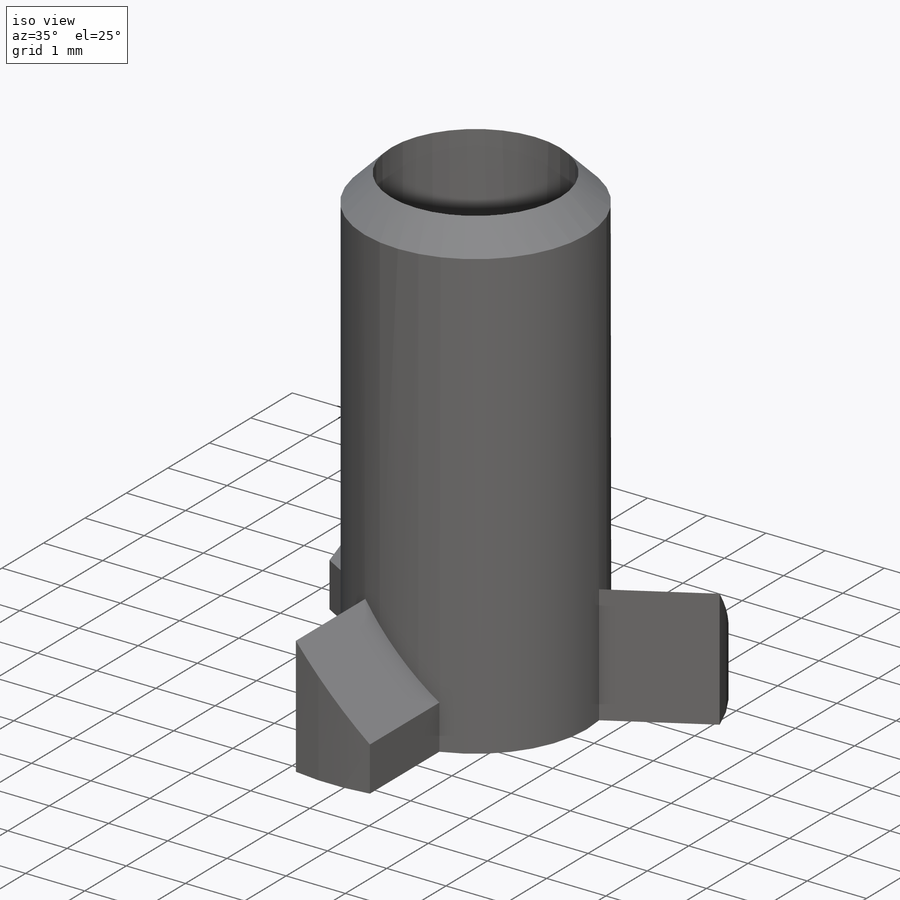
[diagram: iso view]
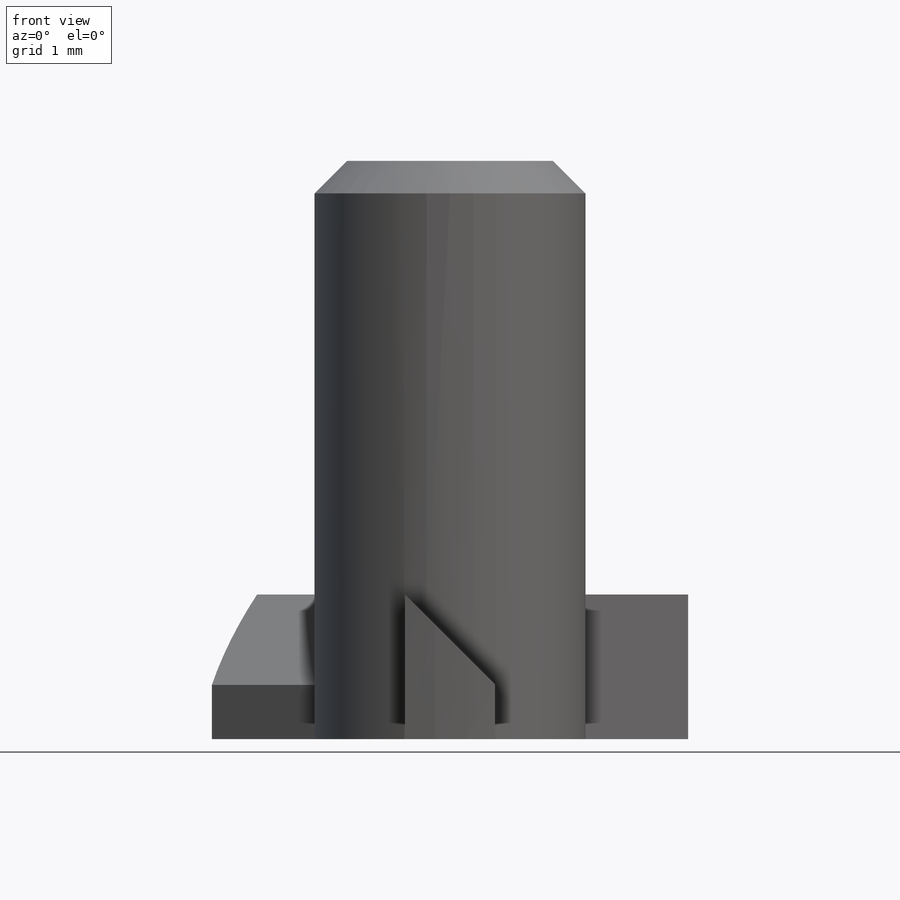
[diagram: front view]
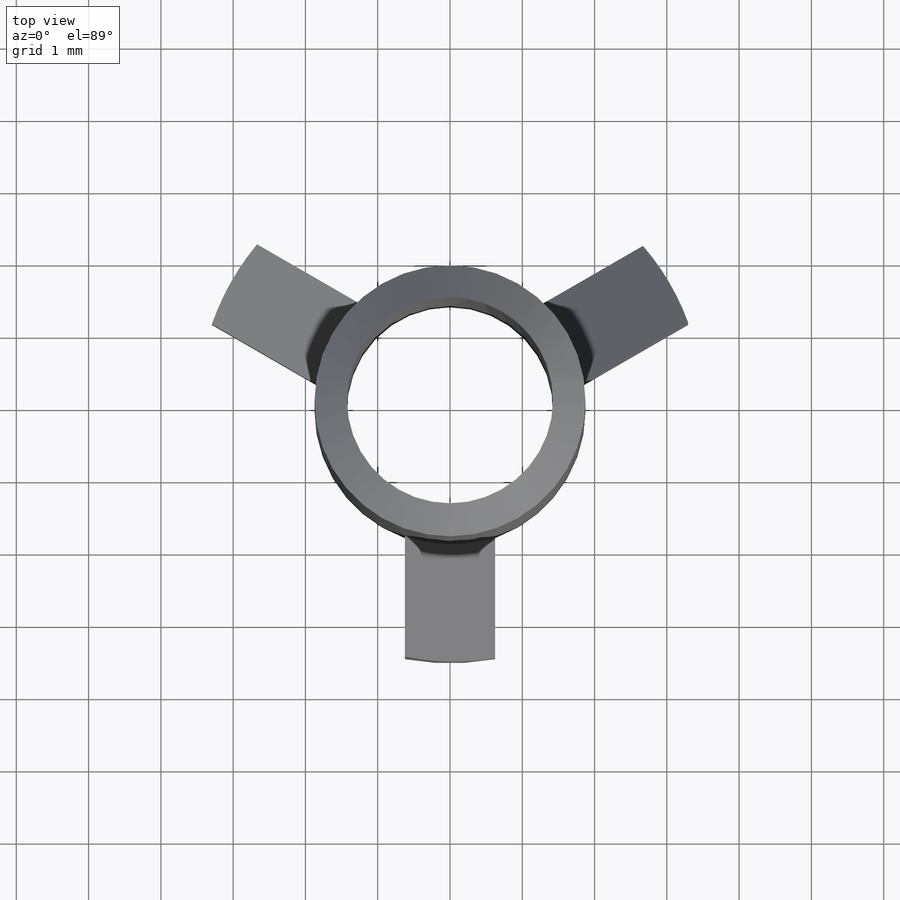
[diagram: top view]
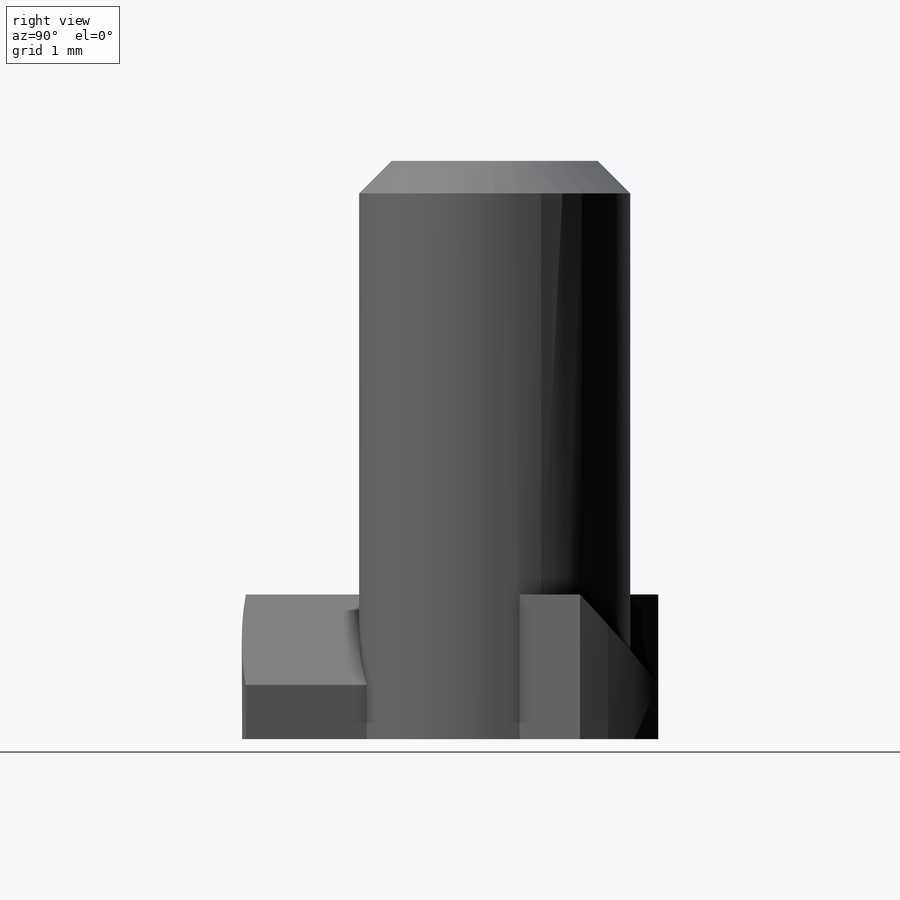
[diagram: right view]
SOLIDWORKS PART (.sldprt)
format: sldprt  version: not decoded by parser v0  size: 480,768 bytes
history: native  units: mm
features: plane x3, sketch x3, material x1, revolve x1, extrude x1, cut_extrude x1, pattern_circular x1, boolean_combine x1 + 1 further entry (+10 scaffold rows collapsed)
feature tree (23):
  scaffold x10  (default folders/planes/origin — collapsed)
  material  "POM"
  plane  "Ebene vorne"
  plane  "Ebene oben"
  plane  "Ebene rechts"
  "PW2_UID_val"
  sketch  "Skizze1"  dims[c1.D1=2.85mm c1.D2=3.75mm c1.D3=0.45mm c2.D3=45.0deg c2.D4=8.0mm c2.D5=2.0mm c2.D6=3.5mm]
  revolve  "Rotation1"  Angle=360deg
  sketch  "Skizze2"  dims[D1=3.5mm D2=1.25mm]
  extrude  "Aufsatz-Linear austragen1"  Depth=2mm
  sketch  "Skizze3"  dims[c1.D1=1.25mm c2.D1=45.0deg]
  cut_extrude  "Schnitt-Linear austragen1"  [1 undecoded]
  pattern_circular  "Kreismuster1"  Count=3 Angle=360deg
  boolean_combine  "Kombinieren1"
decode coverage: 6 of 8 modeling features carry decoded parameters; 1 rows unclassified (native names shown)
note: 1 parameter value undecoded
note: suppression state not decoded; provenance and decode notes live in map.json
